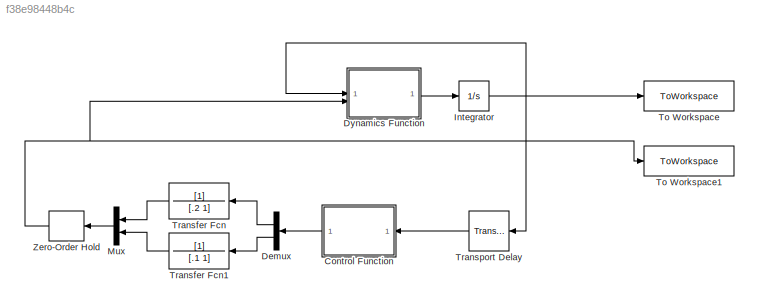
MODEL slx_f38e98448b4c
KIND model
CONFIG AbsTol = auto
CONFIG EnableMultiTasking = off
CONFIG FixedStep = 0.001
CONFIG MaxStep = auto
CONFIG MinStep = auto
CONFIG RelTol = 1e-3
CONFIG SampleTimeConstraint = Unconstrained
CONFIG SolverName = ode4
CONFIG StartTime = 0.0
CONFIG StopTime = 10.0
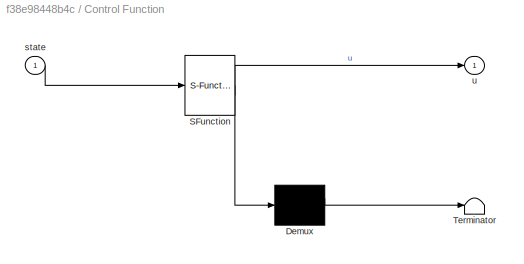
BLOCK [SubSystem] Control Function
  ErrorFcn = Stateflow.Translate.translate
  LibrarySourceBlock = simulink/User-Defined\nFunctions/MATLAB Function
  PermitHierarchicalResolution = ExplicitOnly
  SFBlockType = MATLAB Function
  TreatAsAtomicUnit = on
BLOCK [Demux] Control Function/ Demux 
  Outputs = 1
BLOCK [S-Function] Control Function/ SFunction 
  EnableBusSupport = on
  FunctionName = sf_sfun
  PortCounts = [1 2]
  SFcnIsStateOwnerBlock = off
  SFunctionDeploymentMode = off
  Tag = Stateflow S-Function 1
BLOCK [Terminator] Control Function/ Terminator 
BLOCK [Inport] Control Function/state
BLOCK [Outport] Control Function/u
BLOCK [Demux] Demux
  Outputs = 2
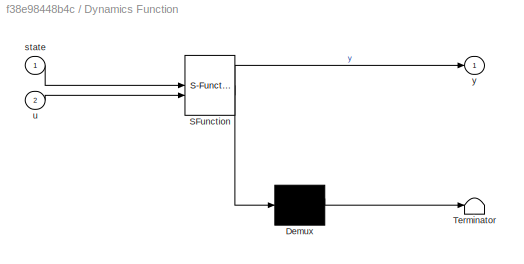
BLOCK [SubSystem] Dynamics Function
  ErrorFcn = Stateflow.Translate.translate
  LibrarySourceBlock = simulink/User-Defined\nFunctions/MATLAB Function
  PermitHierarchicalResolution = ExplicitOnly
  SFBlockType = MATLAB Function
  TreatAsAtomicUnit = on
BLOCK [Demux] Dynamics Function/ Demux 
  Outputs = 1
BLOCK [S-Function] Dynamics Function/ SFunction 
  EnableBusSupport = on
  FunctionName = sf_sfun
  PortCounts = [2 2]
  SFcnIsStateOwnerBlock = off
  SFunctionDeploymentMode = off
  Tag = Stateflow S-Function 2
BLOCK [Terminator] Dynamics Function/ Terminator 
BLOCK [Inport] Dynamics Function/state
BLOCK [Inport] Dynamics Function/u
  Port = 2
BLOCK [Outport] Dynamics Function/y
BLOCK [Integrator] Integrator
  InitialCondition = [state_init]
BLOCK [Mux] Mux
  DisplayOption = bar
  Inputs = 2
BLOCK [ToWorkspace] To Workspace
  FixptAsFi = on
  MaxDataPoints = inf
  SampleTime = -1
  SaveFormat = Timeseries
  VariableName = states
BLOCK [ToWorkspace] To Workspace1
  FixptAsFi = on
  MaxDataPoints = inf
  SampleTime = -1
  SaveFormat = Timeseries
  VariableName = u
BLOCK [TransferFcn] Transfer Fcn
  Denominator = [.2 1]
BLOCK [TransferFcn] Transfer Fcn1
  Denominator = [.1 1]
BLOCK [TransportDelay] Transport Delay
  DelayTime = .005
BLOCK [ZeroOrderHold] Zero-Order Hold
  SampleTime = 0.05
LINE Control Function:1 -> Demux:1
LINE Demux:1 -> Transfer Fcn:1
LINE Demux:2 -> Transfer Fcn1:1
LINE Dynamics Function:1 -> Integrator:1
NET Integrator:1 -> Dynamics Function:1, To Workspace:1, Transport Delay:1
LINE Mux:1 -> Zero-Order Hold:1
LINE Transfer Fcn1:1 -> Mux:2
LINE Transfer Fcn:1 -> Mux:1
LINE Transport Delay:1 -> Control Function:1
NET Zero-Order Hold:1 -> Dynamics Function:2, To Workspace1:1
note: NET lines group one-source signal fan-out (src -> all destinations, sorted); 1:1 wires keep LINE
CHART Dynamics Function states=1 transitions=1
  STATE_LABEL 'eML_blk_kernel()'
  STATE_LABEL 'SCRIPT:\nfunction y = dynamics(state, u)\n    % Parameters of RC car in paper, probably a good place to start\n    m = 2.04;       % Mass [kg]\n    Lr = .1087;     % Distance from CM to rear axle [m]\n    Lf = .1513;     % Distance from CM to front axle [m]\n    Iz = 0.03;      % Yaw moment of inertia [kg/m^2]\n    Cr = 127.77;    % Rear tire cornering stiffness\n    Cf = 47.86;     % Front tire cornering...<+533ch>'
CHART Control Function states=1 transitions=1
  STATE_LABEL 'eML_blk_kernel()'
  STATE_LABEL 'SCRIPT:\nfunction u = controller(state)\n\n    u = drift_LQR_controller(state(1:3));'
CHART  states=0 transitions=0
CHART  states=0 transitions=0
